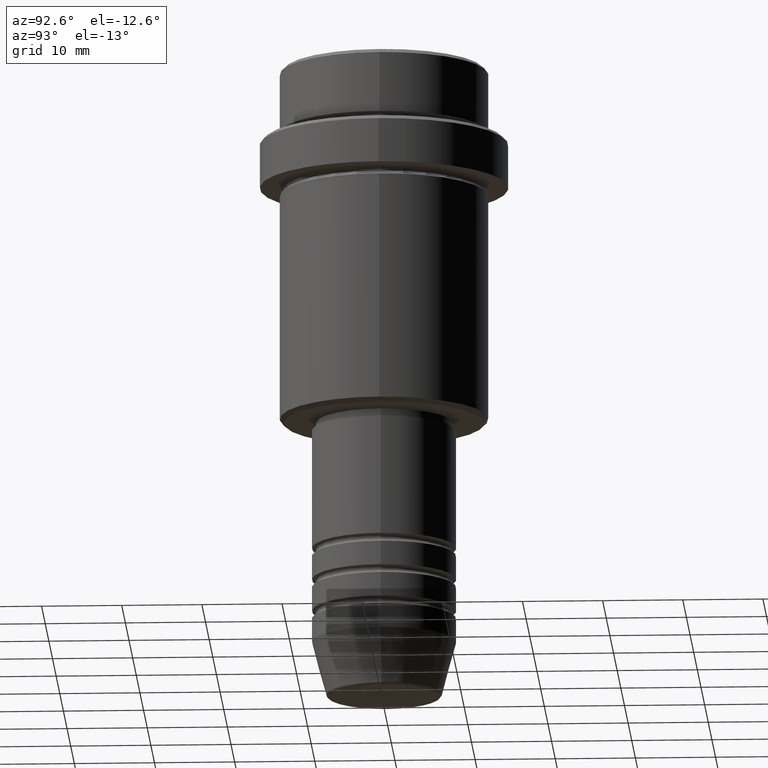
[diagram: clean part render]
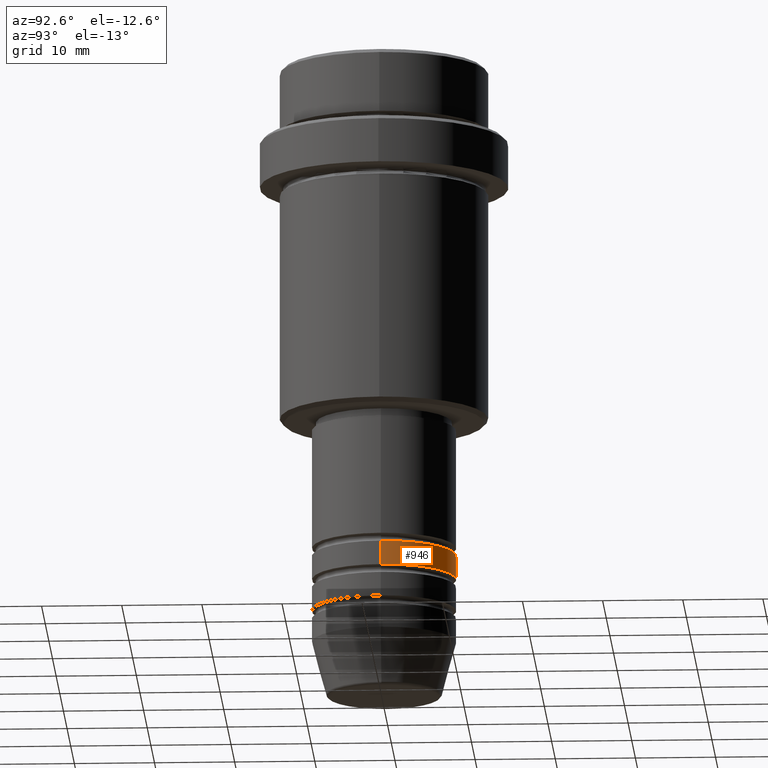
[diagram: same view with one face highlighted and labeled with its STEP entity id]
A machine part, auxiliary view. The second image highlights one B-rep face of the part: STEP entity #946.
In plain terms, the highlighted cylindrical surface (partial cylindrical patch) has radius 9 mm, axis along (-0, -0, 1).
Its self-contained STEP definition (entity closure, byte-faithful):
#75 = VERTEX_POINT ( 'NONE', #1195 ) ;
#84 = FACE_OUTER_BOUND ( 'NONE', #1313, .T. ) ;
#113 = ORIENTED_EDGE ( 'NONE', *, *, #474, .T. ) ;
#118 = VECTOR ( 'NONE', #1013, 1000.000000000000000 ) ;
#128 = ORIENTED_EDGE ( 'NONE', *, *, #1262, .T. ) ;
#243 = CARTESIAN_POINT ( 'NONE',  ( -9.000000000000000000, 1.102182119232617714E-15, 0.000000000000000000 ) ) ;
#264 = EDGE_CURVE ( 'NONE', #794, #75, #1369, .T. ) ;
#343 = VERTEX_POINT ( 'NONE', #602 ) ;
#346 = VECTOR ( 'NONE', #654, 1000.000000000000000 ) ;
#363 = DIRECTION ( 'NONE',  ( -0.000000000000000000, -0.000000000000000000, 1.000000000000000000 ) ) ;
#454 = LINE ( 'NONE', #243, #346 ) ;
#474 = EDGE_CURVE ( 'NONE', #766, #343, #1046, .T. ) ;
#490 = CARTESIAN_POINT ( 'NONE',  ( 0.000000000000000000, 0.000000000000000000, -61.99999999999989342 ) ) ;
#491 = CARTESIAN_POINT ( 'NONE',  ( 0.000000000000000000, 0.000000000000000000, 0.000000000000000000 ) ) ;
#493 = EDGE_CURVE ( 'NONE', #766, #794, #886, .T. ) ;
#602 = CARTESIAN_POINT ( 'NONE',  ( -9.000000000000000000, 1.102182119232617714E-15, -64.99999999999988631 ) ) ;
#654 = DIRECTION ( 'NONE',  ( -0.000000000000000000, -0.000000000000000000, 1.000000000000000000 ) ) ;
#705 = DIRECTION ( 'NONE',  ( 1.000000000000000000, 0.000000000000000000, 0.000000000000000000 ) ) ;
#725 = AXIS2_PLACEMENT_3D ( 'NONE', #778, #769, #1205 ) ;
#730 = DIRECTION ( 'NONE',  ( 1.000000000000000000, 0.000000000000000000, 0.000000000000000000 ) ) ;
#766 = VERTEX_POINT ( 'NONE', #779 ) ;
#769 = DIRECTION ( 'NONE',  ( -0.000000000000000000, -0.000000000000000000, 1.000000000000000000 ) ) ;
#778 = CARTESIAN_POINT ( 'NONE',  ( 0.000000000000000000, 0.000000000000000000, -64.99999999999988631 ) ) ;
#779 = CARTESIAN_POINT ( 'NONE',  ( 9.000000000000000000, 0.000000000000000000, -64.99999999999988631 ) ) ;
#794 = VERTEX_POINT ( 'NONE', #1207 ) ;
#831 = CYLINDRICAL_SURFACE ( 'NONE', #1335, 9.000000000000000000 ) ;
#862 = ORIENTED_EDGE ( 'NONE', *, *, #493, .F. ) ;
#886 = LINE ( 'NONE', #1322, #118 ) ;
#946 = ADVANCED_FACE ( 'NONE', ( #84 ), #831, .T. ) ;
#955 = AXIS2_PLACEMENT_3D ( 'NONE', #490, #363, #705 ) ;
#1013 = DIRECTION ( 'NONE',  ( -0.000000000000000000, -0.000000000000000000, 1.000000000000000000 ) ) ;
#1046 = CIRCLE ( 'NONE', #725, 9.000000000000000000 ) ;
#1052 = DIRECTION ( 'NONE',  ( -0.000000000000000000, -0.000000000000000000, 1.000000000000000000 ) ) ;
#1119 = ORIENTED_EDGE ( 'NONE', *, *, #264, .F. ) ;
#1195 = CARTESIAN_POINT ( 'NONE',  ( -9.000000000000000000, 1.102182119232617714E-15, -61.99999999999989342 ) ) ;
#1205 = DIRECTION ( 'NONE',  ( 1.000000000000000000, 0.000000000000000000, 0.000000000000000000 ) ) ;
#1207 = CARTESIAN_POINT ( 'NONE',  ( 9.000000000000000000, 0.000000000000000000, -61.99999999999989342 ) ) ;
#1262 = EDGE_CURVE ( 'NONE', #343, #75, #454, .T. ) ;
#1313 = EDGE_LOOP ( 'NONE', ( #113, #128, #1119, #862 ) ) ;
#1322 = CARTESIAN_POINT ( 'NONE',  ( 9.000000000000000000, 0.000000000000000000, 0.000000000000000000 ) ) ;
#1335 = AXIS2_PLACEMENT_3D ( 'NONE', #491, #1052, #730 ) ;
#1369 = CIRCLE ( 'NONE', #955, 9.000000000000000000 ) ;